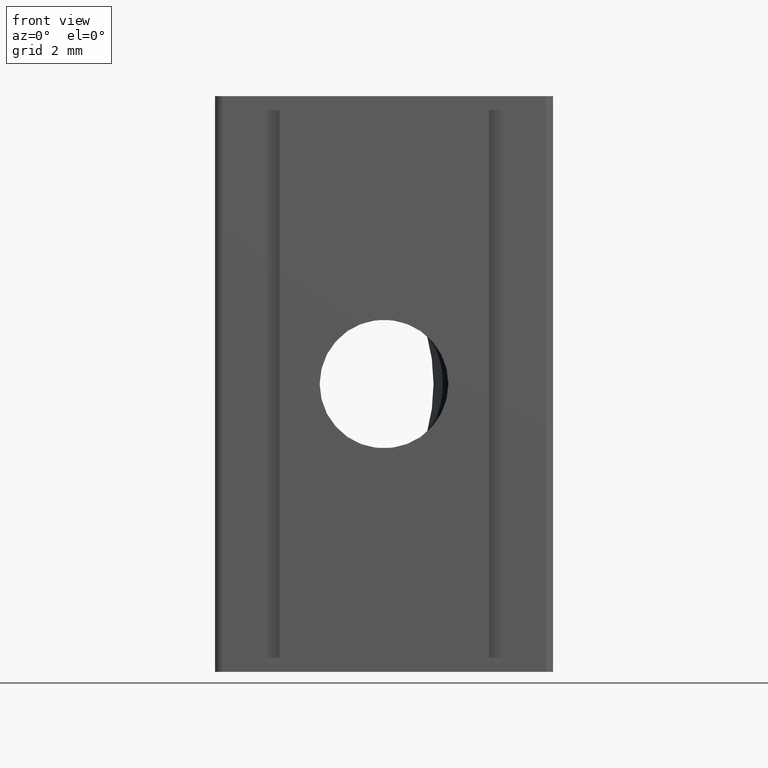
[diagram: clean part render]
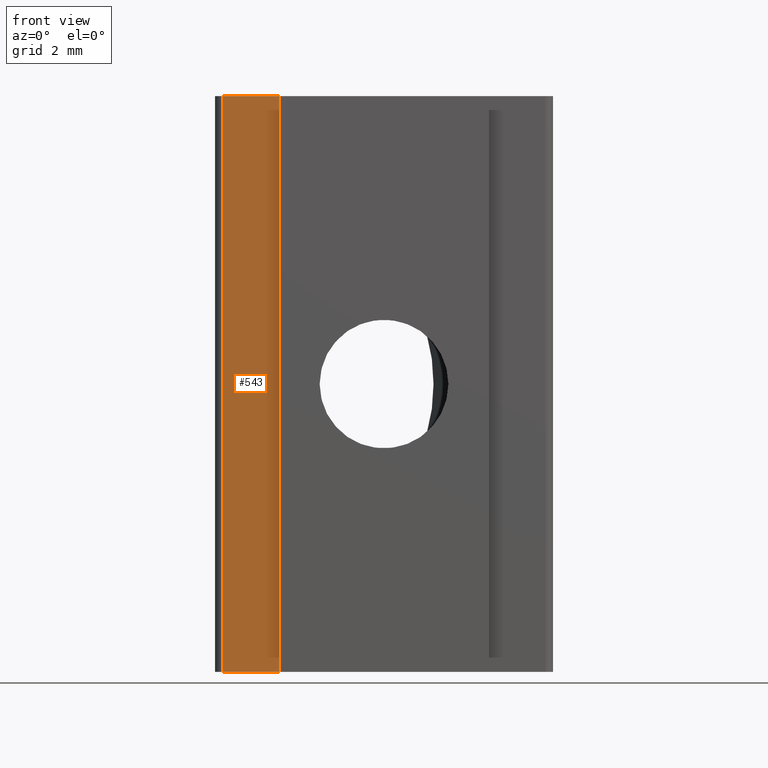
[diagram: same view with one face highlighted and labeled with its STEP entity id]
A machine part, front view. The second image highlights one B-rep face of the part: STEP entity #543.
In plain terms, the highlighted planar face has unit normal (0, -1, 0).
Its self-contained STEP definition (entity closure, byte-faithful):
#36=PLANE('',#594);
#64=FACE_OUTER_BOUND('',#94,.T.);
#94=EDGE_LOOP('',(#502,#503,#504,#505));
#128=LINE('',#843,#182);
#132=LINE('',#858,#186);
#136=LINE('',#870,#190);
#148=LINE('',#939,#202);
#182=VECTOR('',#684,2.15920210335143);
#186=VECTOR('',#698,22.);
#190=VECTOR('',#710,2.15920210335143);
#202=VECTOR('',#746,22.);
#255=VERTEX_POINT('',#840);
#256=VERTEX_POINT('',#842);
#261=VERTEX_POINT('',#854);
#266=VERTEX_POINT('',#869);
#320=EDGE_CURVE('',#256,#255,#128,.T.);
#328=EDGE_CURVE('',#256,#261,#132,.T.);
#334=EDGE_CURVE('',#261,#266,#136,.T.);
#351=EDGE_CURVE('',#255,#266,#148,.T.);
#502=ORIENTED_EDGE('',*,*,#328,.F.);
#503=ORIENTED_EDGE('',*,*,#320,.T.);
#504=ORIENTED_EDGE('',*,*,#351,.T.);
#505=ORIENTED_EDGE('',*,*,#334,.F.);
#543=ADVANCED_FACE('',(#64),#36,.T.);
#594=AXIS2_PLACEMENT_3D('',#940,#747,#748);
#684=DIRECTION('',(1.,6.30808536718839E-18,0.));
#698=DIRECTION('',(0.,0.,1.));
#710=DIRECTION('',(1.,6.30808536718839E-18,0.));
#746=DIRECTION('',(0.,0.,1.));
#747=DIRECTION('center_axis',(6.30808536718839E-18,-1.,0.));
#748=DIRECTION('ref_axis',(1.,6.30808536718839E-18,0.));
#840=CARTESIAN_POINT('',(-4.,1.73472347597681E-17,0.));
#842=CARTESIAN_POINT('',(-6.15920210335143,3.7268035668145E-18,0.));
#843=CARTESIAN_POINT('',(-6.75,0.,0.));
#854=CARTESIAN_POINT('',(-6.15920210335143,3.7268035668145E-18,22.));
#858=CARTESIAN_POINT('',(-6.15920210335143,0.,0.));
#869=CARTESIAN_POINT('',(-4.,1.73472347597681E-17,22.));
#870=CARTESIAN_POINT('',(-6.75,0.,22.));
#939=CARTESIAN_POINT('',(-4.,1.73472347597681E-17,0.));
#940=CARTESIAN_POINT('Origin',(-6.75,0.,0.));